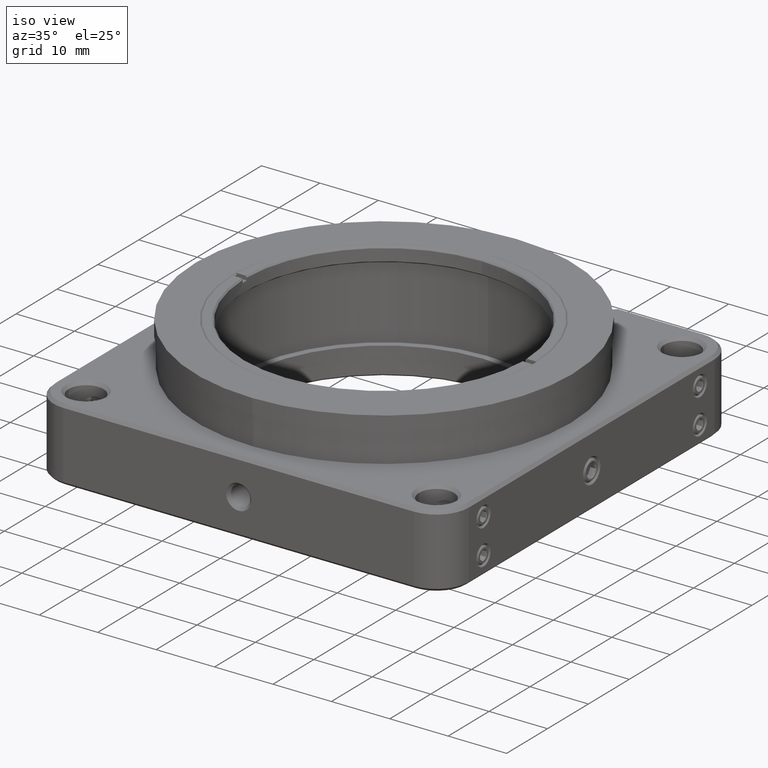
[diagram: clean part render]
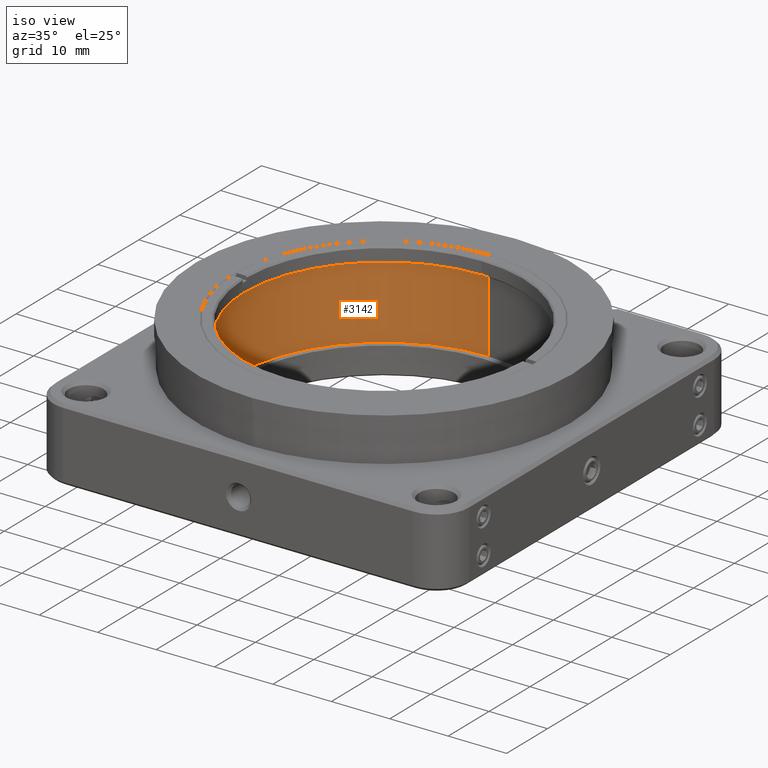
[diagram: same view with one face highlighted and labeled with its STEP entity id]
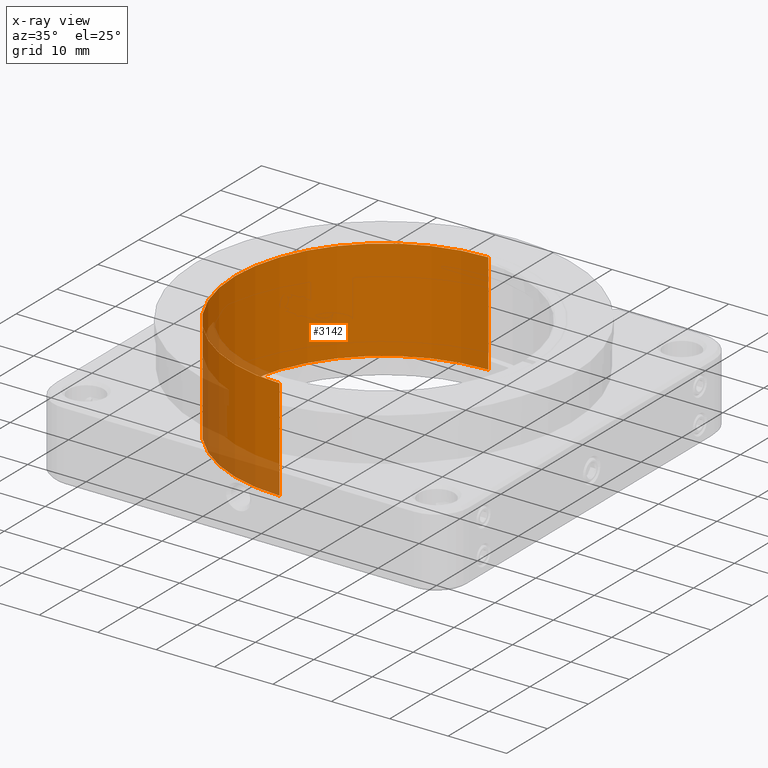
[diagram: x-ray of the same camera — body ghosted, the highlighted face saturated]
A machine part, iso view. The second image highlights one B-rep face of the part: STEP entity #3142.
The next image is the same camera in x-ray: the body ghosted, the highlighted face saturated — about 11% of this face is hidden behind the body in this view.
In plain terms, the highlighted cylindrical surface (partial cylindrical patch) has radius 25.527 mm, axis along (0, 0, -1).
Its self-contained STEP definition (entity closure, byte-faithful):
#739 = DIRECTION ( 'NONE',  ( 0.000000000000000000, 0.000000000000000000, -1.000000000000000000 ) ) ;
#754 = FACE_OUTER_BOUND ( 'NONE', #7074, .T. ) ;
#977 = DIRECTION ( 'NONE',  ( 0.000000000000000000, 1.000000000000000000, 0.000000000000000000 ) ) ;
#1241 = CARTESIAN_POINT ( 'NONE',  ( 3.863419154107597085E-16, 25.52700000000000102, -3.649999999999988365 ) ) ;
#1430 = CYLINDRICAL_SURFACE ( 'NONE', #13694, 25.52700000000000102 ) ;
#1671 = DIRECTION ( 'NONE',  ( 0.000000000000000000, 0.000000000000000000, -1.000000000000000000 ) ) ;
#2008 = DIRECTION ( 'NONE',  ( -0.000000000000000000, -0.000000000000000000, 1.000000000000000000 ) ) ;
#2699 = VERTEX_POINT ( 'NONE', #5579 ) ;
#3015 = DIRECTION ( 'NONE',  ( 0.000000000000000000, 1.000000000000000000, 0.000000000000000000 ) ) ;
#3142 = ADVANCED_FACE ( 'NONE', ( #754 ), #1430, .F. ) ;
#3227 = AXIS2_PLACEMENT_3D ( 'NONE', #8539, #2008, #9618 ) ;
#3422 = EDGE_CURVE ( 'NONE', #5600, #2699, #6550, .T. ) ;
#3936 = EDGE_CURVE ( 'NONE', #9570, #5600, #13348, .T. ) ;
#4125 = LINE ( 'NONE', #9508, #12698 ) ;
#4153 = DIRECTION ( 'NONE',  ( 0.000000000000000000, 0.000000000000000000, -1.000000000000000000 ) ) ;
#5154 = CARTESIAN_POINT ( 'NONE',  ( 3.863419154107597085E-16, 3.959807664569179072E-16, 14.04999999999999893 ) ) ;
#5374 = VERTEX_POINT ( 'NONE', #1241 ) ;
#5579 = CARTESIAN_POINT ( 'NONE',  ( 3.512497799594207765E-15, -25.52700000000000102, -3.649999999999988365 ) ) ;
#5600 = VERTEX_POINT ( 'NONE', #6506 ) ;
#6416 = ORIENTED_EDGE ( 'NONE', *, *, #3936, .T. ) ;
#6506 = CARTESIAN_POINT ( 'NONE',  ( 3.512497799594207765E-15, -25.52700000000000102, 13.74999999999999289 ) ) ;
#6550 = LINE ( 'NONE', #7086, #9750 ) ;
#6893 = ORIENTED_EDGE ( 'NONE', *, *, #3422, .T. ) ;
#7074 = EDGE_LOOP ( 'NONE', ( #6416, #6893, #8496, #8337 ) ) ;
#7086 = CARTESIAN_POINT ( 'NONE',  ( 3.512497799594207765E-15, -25.52700000000000102, 14.04999999999999893 ) ) ;
#8337 = ORIENTED_EDGE ( 'NONE', *, *, #10636, .F. ) ;
#8485 = CARTESIAN_POINT ( 'NONE',  ( 3.863419154107597085E-16, 3.959807664569179072E-16, -3.649999999999988365 ) ) ;
#8496 = ORIENTED_EDGE ( 'NONE', *, *, #9405, .T. ) ;
#8539 = CARTESIAN_POINT ( 'NONE',  ( 3.863419154107597085E-16, 3.959807664569179072E-16, 13.74999999999999289 ) ) ;
#9405 = EDGE_CURVE ( 'NONE', #2699, #5374, #9724, .T. ) ;
#9508 = CARTESIAN_POINT ( 'NONE',  ( 3.863419154107597085E-16, 25.52700000000000102, 14.04999999999999893 ) ) ;
#9570 = VERTEX_POINT ( 'NONE', #14198 ) ;
#9618 = DIRECTION ( 'NONE',  ( 0.000000000000000000, 1.000000000000000000, 0.000000000000000000 ) ) ;
#9724 = CIRCLE ( 'NONE', #12025, 25.52700000000000102 ) ;
#9750 = VECTOR ( 'NONE', #1671, 1000.000000000000000 ) ;
#10636 = EDGE_CURVE ( 'NONE', #9570, #5374, #4125, .T. ) ;
#11646 = DIRECTION ( 'NONE',  ( 0.000000000000000000, 0.000000000000000000, -1.000000000000000000 ) ) ;
#12025 = AXIS2_PLACEMENT_3D ( 'NONE', #8485, #11646, #977 ) ;
#12698 = VECTOR ( 'NONE', #4153, 1000.000000000000000 ) ;
#13348 = CIRCLE ( 'NONE', #3227, 25.52700000000000102 ) ;
#13694 = AXIS2_PLACEMENT_3D ( 'NONE', #5154, #739, #3015 ) ;
#14198 = CARTESIAN_POINT ( 'NONE',  ( 3.863419154107597085E-16, 25.52700000000000102, 13.74999999999999289 ) ) ;